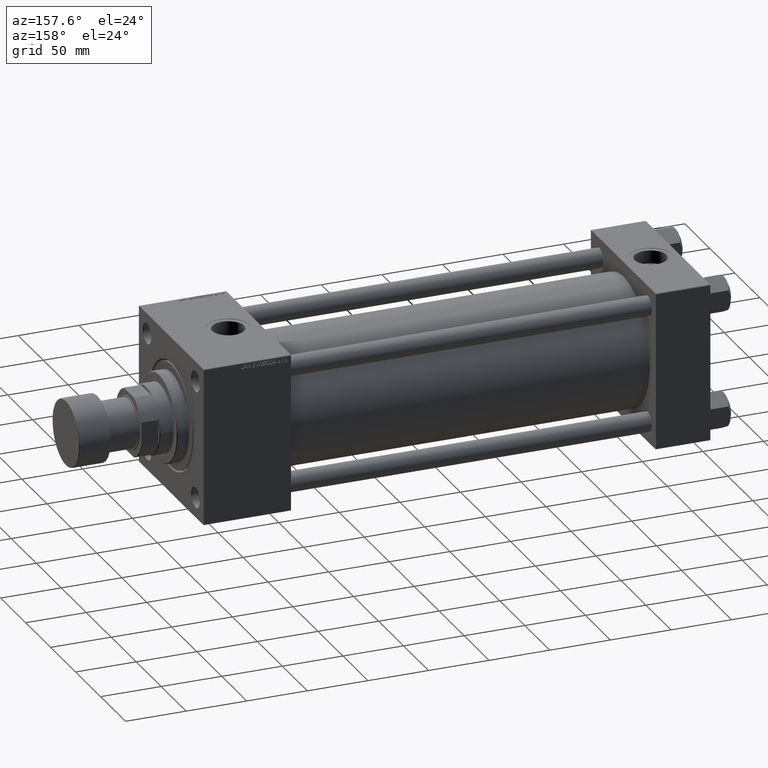
[diagram: clean part render]
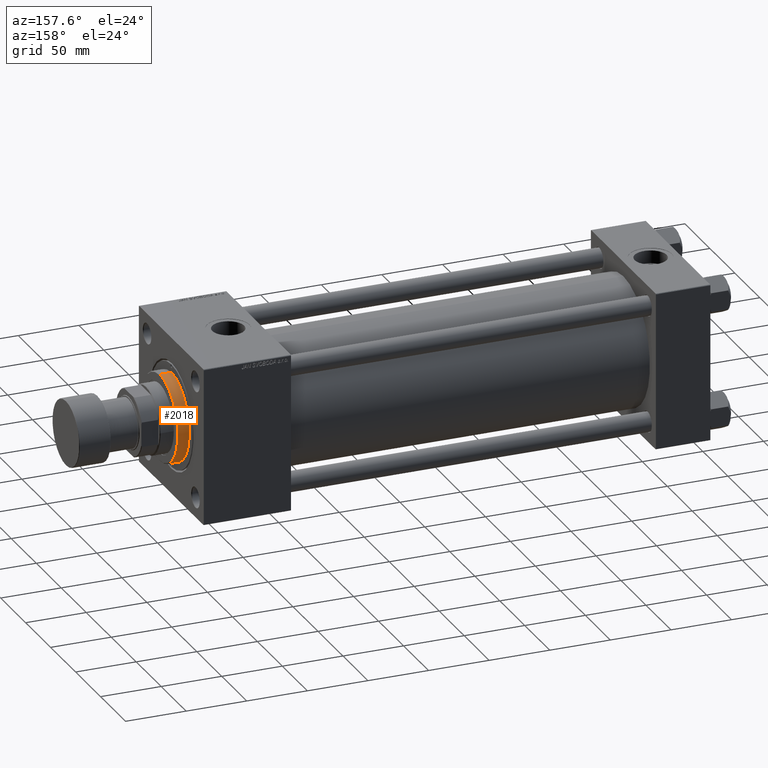
[diagram: same view with one face highlighted and labeled with its STEP entity id]
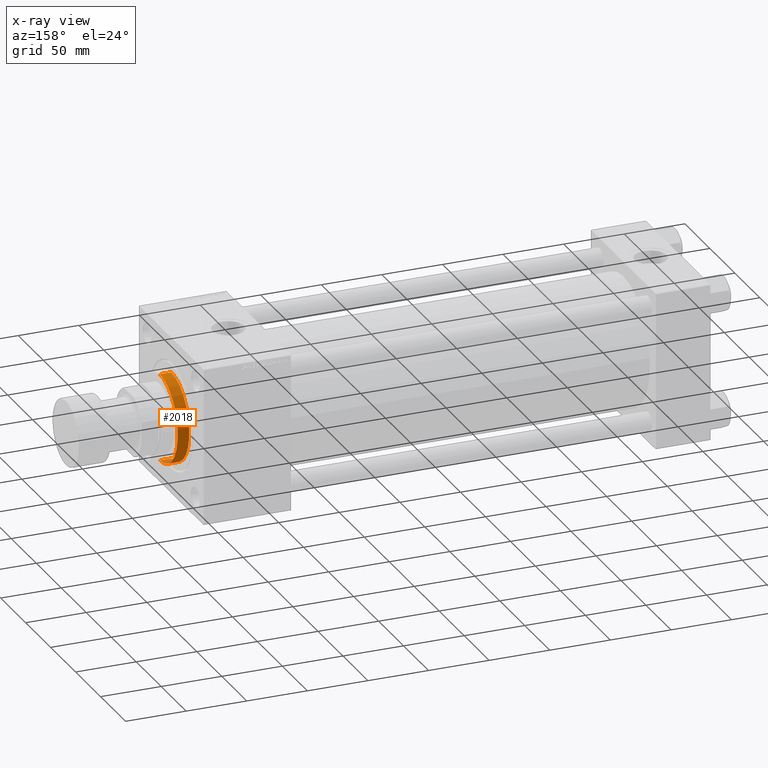
[diagram: x-ray of the same camera — body ghosted, the highlighted face saturated]
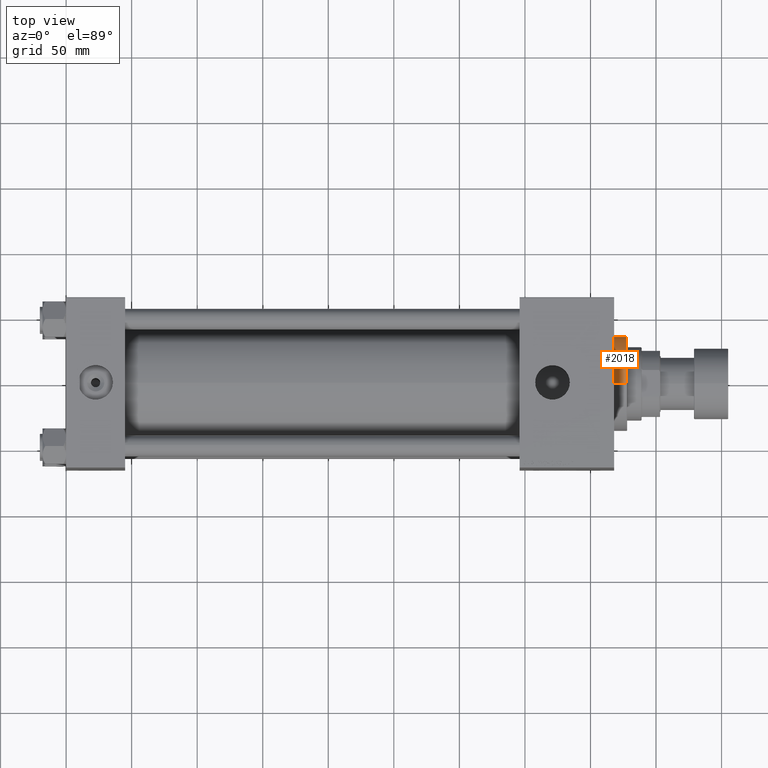
[diagram: same view with one face highlighted and labeled with its STEP entity id]
A machine part, auxiliary view. The second image highlights one B-rep face of the part: STEP entity #2018.
The next image is the same camera in x-ray: the body ghosted, the highlighted face saturated — about 0% of this face is hidden behind the body in this view.
A second angle (top view) of the same face is appended — the face is thin or edge-on in the first view.
In plain terms, the highlighted cylindrical surface (partial cylindrical patch) has radius 36 mm, axis along (-1, -0, -0).
Its self-contained STEP definition (entity closure, byte-faithful):
#1723 = ORIENTED_EDGE ( 'NONE', *, *, #7539, .T. ) ;
#2018 = ADVANCED_FACE ( 'NONE', ( #14826 ), #38985, .T. ) ;
#2212 = DIRECTION ( 'NONE',  ( -0.000000000000000000, -0.000000000000000000, -1.000000000000000000 ) ) ;
#2481 = CARTESIAN_POINT ( 'NONE',  ( 0.000000000000000000, 0.000000000000000000, 38.69999999999999574 ) ) ;
#2620 = AXIS2_PLACEMENT_3D ( 'NONE', #12306, #32181, #12566 ) ;
#2895 = EDGE_CURVE ( 'NONE', #27643, #19937, #8940, .T. ) ;
#3204 = EDGE_CURVE ( 'NONE', #40939, #24652, #46174, .T. ) ;
#6742 = VECTOR ( 'NONE', #49963, 1000.000000000000000 ) ;
#7539 = EDGE_CURVE ( 'NONE', #24652, #19937, #30897, .T. ) ;
#8940 = LINE ( 'NONE', #13234, #12719 ) ;
#10106 = AXIS2_PLACEMENT_3D ( 'NONE', #2481, #2212, #23433 ) ;
#12306 = CARTESIAN_POINT ( 'NONE',  ( 0.000000000000000000, 0.000000000000000000, 28.69999999999999929 ) ) ;
#12566 = DIRECTION ( 'NONE',  ( 1.000000000000000000, 0.000000000000000000, 0.000000000000000000 ) ) ;
#12719 = VECTOR ( 'NONE', #46777, 1000.000000000000000 ) ;
#12720 = CARTESIAN_POINT ( 'NONE',  ( -36.00000000000000000, 0.000000000000000000, 38.19999999999998863 ) ) ;
#13234 = CARTESIAN_POINT ( 'NONE',  ( -36.00000000000000000, 0.000000000000000000, 38.69999999999999574 ) ) ;
#14826 = FACE_OUTER_BOUND ( 'NONE', #24507, .T. ) ;
#16664 = DIRECTION ( 'NONE',  ( 0.000000000000000000, 0.000000000000000000, -1.000000000000000000 ) ) ;
#19937 = VERTEX_POINT ( 'NONE', #49353 ) ;
#21364 = EDGE_CURVE ( 'NONE', #27643, #40939, #29118, .T. ) ;
#23433 = DIRECTION ( 'NONE',  ( -1.000000000000000000, 0.000000000000000000, 0.000000000000000000 ) ) ;
#23491 = DIRECTION ( 'NONE',  ( 1.000000000000000000, 0.000000000000000000, 0.000000000000000000 ) ) ;
#24507 = EDGE_LOOP ( 'NONE', ( #24581, #41401, #1723, #24968 ) ) ;
#24581 = ORIENTED_EDGE ( 'NONE', *, *, #21364, .T. ) ;
#24652 = VERTEX_POINT ( 'NONE', #39631 ) ;
#24968 = ORIENTED_EDGE ( 'NONE', *, *, #2895, .F. ) ;
#27643 = VERTEX_POINT ( 'NONE', #12720 ) ;
#29118 = CIRCLE ( 'NONE', #47103, 36.00000000000000000 ) ;
#30897 = CIRCLE ( 'NONE', #2620, 36.00000000000000000 ) ;
#31525 = CARTESIAN_POINT ( 'NONE',  ( 0.000000000000000000, 0.000000000000000000, 38.19999999999998863 ) ) ;
#32181 = DIRECTION ( 'NONE',  ( 0.000000000000000000, 0.000000000000000000, 1.000000000000000000 ) ) ;
#33590 = CARTESIAN_POINT ( 'NONE',  ( 36.00000000000000000, 4.408728476930470856E-15, 38.69999999999999574 ) ) ;
#38985 = CYLINDRICAL_SURFACE ( 'NONE', #10106, 36.00000000000000000 ) ;
#39631 = CARTESIAN_POINT ( 'NONE',  ( 36.00000000000000000, 4.408728476930470856E-15, 28.69999999999999929 ) ) ;
#40939 = VERTEX_POINT ( 'NONE', #44776 ) ;
#41401 = ORIENTED_EDGE ( 'NONE', *, *, #3204, .T. ) ;
#44776 = CARTESIAN_POINT ( 'NONE',  ( 36.00000000000000000, 4.408728476930470856E-15, 38.19999999999998863 ) ) ;
#46174 = LINE ( 'NONE', #33590, #6742 ) ;
#46777 = DIRECTION ( 'NONE',  ( -0.000000000000000000, -0.000000000000000000, -1.000000000000000000 ) ) ;
#47103 = AXIS2_PLACEMENT_3D ( 'NONE', #31525, #16664, #23491 ) ;
#49353 = CARTESIAN_POINT ( 'NONE',  ( -36.00000000000000000, 0.000000000000000000, 28.69999999999999929 ) ) ;
#49963 = DIRECTION ( 'NONE',  ( -0.000000000000000000, -0.000000000000000000, -1.000000000000000000 ) ) ;